MODEL mpptmodel_newtest
KIND model
BLOCK [Reference] Ammeter  REF=powerlib/Measurements/Current Measurement
  OutputType = Complex
  PSBequivalent = 0
  PhasorSimulation = off
  Ports = [0, 1, 0, 0, 0, 1, 1]
  SID = 167
  SourceBlock = powerlib/Measurements/Current Measurement
  SourceProductBaseCode = PS
  SourceProductName = Simscape Electrical
  SourceType = Current Measurement
BLOCK [Reference] Ammeter1  REF=powerlib/Measurements/Current Measurement
  OutputType = Complex
  PSBequivalent = 0
  PhasorSimulation = off
  Ports = [0, 1, 0, 0, 0, 1, 1]
  SID = 241
  SourceBlock = powerlib/Measurements/Current Measurement
  SourceProductBaseCode = PS
  SourceProductName = Simscape Electrical
  SourceType = Current Measurement
BLOCK [Reference] Cin  REF=powerlib/Elements/Series RLC Branch
  BranchType = C
  Capacitance = 2000e-6
  Inductance = 1e-3
  InitialCurrent = 0
  InitialVoltage = 0
  LConnTagsString = __new0
  Measurements = None
  Ports = [0, 0, 0, 0, 0, 1, 1]
  RConnTagsString = __new0
  Resistance = 0.03
  SID = 224
  SetiL0 = off
  Setx0 = off
  SourceBlock = powerlib/Elements/Series RLC Branch
  SourceProductBaseCode = PS
  SourceProductName = Simscape Electrical
  SourceType = Series RLC Branch
BLOCK [Reference] Diode  REF=powerlib/Power\nElectronics/Diode
  Cs = 250e-9
  IC = 0
  Lon = 0
  Measurements = on
  Ports = [0, 1, 0, 0, 0, 1, 1]
  Ron = 0.001
  Rs = 500
  SID = 210
  SourceBlock = powerlib/Power\nElectronics/Diode
  SourceProductBaseCode = PS
  SourceProductName = Simscape Electrical
  SourceType = Diode
  UseSnubber = off
  Vf = 0.8
BLOCK [Display] Input voltage
  Decimation = 1
  Ports = [1]
  SID = 206
BLOCK [Reference] Isource  REF=powerlib/Electrical\nSources/Controlled Current Source
  Amplitude = 0
  Frequency = 0
  Initialize = on
  Measurements = None
  Phase = 0
  Ports = [1, 0, 0, 0, 0, 1, 1]
  SID = 166
  SourceBlock = powerlib/Electrical\nSources/Controlled Current Source
  SourceProductBaseCode = PS
  SourceProductName = Simscape Electrical
  SourceType = Controlled Current Source
  Source_Type = AC
BLOCK [Reference] L  REF=powerlib/Elements/Series RLC Branch
  BranchType = L
  Capacitance = 1e-6
  Inductance = 66e-6
  InitialCurrent = 0
  InitialVoltage = 0
  LConnTagsString = __new0
  Measurements = None
  Ports = [0, 0, 0, 0, 0, 1, 1]
  RConnTagsString = __new0
  Resistance = 0.2e-3
  SID = 207
  SetiL0 = off
  Setx0 = off
  SourceBlock = powerlib/Elements/Series RLC Branch
  SourceProductBaseCode = PS
  SourceProductName = Simscape Electrical
  SourceType = Series RLC Branch
BLOCK [SubSystem] MPPT
  Ports = [2, 1]
  RequestExecContextInheritance = off
  SID = 375
BLOCK [Sum] MPPT/Add
  InputSameDT = off
  OutDataTypeStr = Inherit: Inherit via internal rule
  Ports = [2, 1]
  SID = 378
  SaturateOnIntegerOverflow = off
BLOCK [Outport] MPPT/D
  IconDisplay = Port number
  SID = 404
BLOCK [Product] MPPT/D State
  InputSameDT = off
  OutDataTypeStr = Inherit: Inherit via internal rule
  Ports = [2, 1]
  SID = 382
  SaturateOnIntegerOverflow = off
BLOCK [Memory] MPPT/Db
  InheritSampleTime = on
  LinearizeAsDelay = on
  SID = 383
BLOCK [Constant] MPPT/DeltaD
  SID = 384
  Value = 0.01
BLOCK [Product] MPPT/DeltaP*DeltaV
  InputSameDT = off
  OutDataTypeStr = Inherit: Inherit via internal rule
  Ports = [2, 1]
  SID = 385
  SaturateOnIntegerOverflow = off
BLOCK [Inport] MPPT/I
  IconDisplay = Port number
  Port = 2
  SID = 377
BLOCK [Memory] MPPT/Ib
  InheritSampleTime = on
  LinearizeAsDelay = on
  SID = 387
BLOCK [Constant] MPPT/If DeltaP*DeltaV<0
  SID = 388
BLOCK [Constant] MPPT/If DeltaP*DeltaV>0
  SID = 389
  Value = -1
BLOCK [Product] MPPT/Pb
  InputSameDT = off
  OutDataTypeStr = Inherit: Inherit via internal rule
  Ports = [2, 1]
  SID = 391
  SaturateOnIntegerOverflow = off
BLOCK [Product] MPPT/Pn
  InputSameDT = off
  OutDataTypeStr = Inherit: Inherit via internal rule
  Ports = [2, 1]
  SID = 392
  SaturateOnIntegerOverflow = off
BLOCK [Sum] MPPT/Pn-Pb
  InputSameDT = off
  Inputs = +-
  OutDataTypeStr = Inherit: Inherit via internal rule
  Ports = [2, 1]
  SID = 393
  SaturateOnIntegerOverflow = off
BLOCK [Saturate] MPPT/Saturation
  InputPortMap = u0
  LowerLimit = .1
  Ports = [1, 1]
  SID = 395
  UpperLimit = .9
BLOCK [Switch] MPPT/Switch1
  InputSameDT = off
  SID = 398
  SaturateOnIntegerOverflow = off
BLOCK [Inport] MPPT/V
  IconDisplay = Port number
  SID = 376
BLOCK [Memory] MPPT/Vb
  InheritSampleTime = on
  LinearizeAsDelay = on
  SID = 401
BLOCK [Sum] MPPT/Vn-Vb
  InputSameDT = off
  Inputs = +-
  OutDataTypeStr = Inherit: Inherit via internal rule
  Ports = [2, 1]
  SID = 403
  SaturateOnIntegerOverflow = off
BLOCK [Scope] Scope3
  Floating = off
  NumInputPorts = 2
  Ports = [2]
  SID = 234
  ScopeSpecificationString = C++SS(StrPVP('Location','[5, 48, 1359, 727]'),StrPVP('Open','off'),MxPVP('AxesTitles',54,'struct(''axes1'',''%<SignalLabel>'',''axes2'',''%<SignalLabel>'')'),MxPVP('ScopeGraphics',57,'struct(''FigureColor'',''[0.5 0.5 0.5]'',''AxesColor'',''[0 0 0]'',''AxesTickColor'',''[1 1 1]'',''LineColors'',''[1 1 0;1 0 1;0 1 1;1 0 0;0 1 0;0 0 1]'',''LineStyles'',''-|-|-|-|-|-'',''LineWidths'',''[0.5 0.5 0.5 0...<+351ch>
BLOCK [Scope] Scope4
  Floating = off
  NumInputPorts = 1
  Ports = [1]
  SID = 426
  ScopeSpecificationString = C++SS(StrPVP('Location','[5, 48, 1359, 727]'),StrPVP('Open','off'),MxPVP('AxesTitles',54,'struct(''axes1'',''%<SignalLabel>'')'),MxPVP('ScopeGraphics',57,'struct(''FigureColor'',''[0.5 0.5 0.5]'',''AxesColor'',''[0 0 0]'',''AxesTickColor'',''[1 1 1]'',''LineColors'',''[1 1 0;1 0 1;0 1 1;1 0 0;0 1 0;0 0 1]'',''LineStyles'',''-|-|-|-|-|-'',''LineWidths'',''[0.5 0.5 0.5 0.5 0.5 0.5]'',''MarkerStyles'...<+320ch>
BLOCK [Reference] Series RLC Branch  REF=powerlib/Elements/Series RLC Branch
  BranchType = RC
  Capacitance = 75e-6
  Inductance = 1e-3
  InitialCurrent = 0
  InitialVoltage = 0
  LConnTagsString = __new0
  Measurements = None
  Ports = [0, 0, 0, 0, 0, 1, 1]
  RConnTagsString = __new0
  Resistance = 0.0003
  SID = 208
  SetiL0 = off
  Setx0 = off
  SourceBlock = powerlib/Elements/Series RLC Branch
  SourceProductBaseCode = PS
  SourceProductName = Simscape Electrical
  SourceType = Series RLC Branch
BLOCK [SubSystem] Simulation outs
  Ports = [3]
  RequestExecContextInheritance = off
  SID = 482
BLOCK [Clock] Simulation outs/Clock
  DisplayTime = on
  SID = 474
BLOCK [Inport] Simulation outs/Iin
  IconDisplay = Port number
  Port = 2
  SID = 484
BLOCK [Display] Simulation outs/Iload
  Decimation = 1
  Ports = [1]
  SID = 475
BLOCK [Inport] Simulation outs/Iload1
  IconDisplay = Port number
  Port = 3
  SID = 485
BLOCK [Display] Simulation outs/Input power display
  Decimation = 1
  Ports = [1]
  SID = 476
BLOCK [Scope] Simulation outs/Power
  Floating = off
  NumInputPorts = 1
  Ports = [1]
  SID = 477
  ScopeSpecificationString = C++SS(StrPVP('Location','[5, 48, 1359, 727]'),StrPVP('Open','off'),MxPVP('AxesTitles',54,'struct(''axes1'',''%<SignalLabel>'')'),MxPVP('ScopeGraphics',57,'struct(''FigureColor'',''[0.941176470588235 0.941176470588235 0.941176470588235]'',''AxesColor'',''[1 1 1]'',''AxesTickColor'',''[0 0 0]'',''LineColors'',''[0 0 1;1 0 1;0 1 1;1 0 0;0 1 0;0 0 1]'',''LineStyles'',''-|-|-|-|-|-'',''LineWidths'',''[...<+355ch>
BLOCK [Reference] Simulation outs/Power input  REF=simulink/Sinks/XY Graph
  Ports = [2]
  SID = 478
  SourceBlock = simulink/Sinks/XY Graph
  SourceProductBaseCode = SL
  SourceProductName = Simulink
  SourceType = XY scope.
  st = -1
  xmax = 0.1
  xmin = 0
  ymax = 100
  ymin = 0
BLOCK [Product] Simulation outs/Product
  InputSameDT = off
  OutDataTypeStr = Inherit: Inherit via internal rule
  Ports = [2, 1]
  SID = 479
  SaturateOnIntegerOverflow = off
BLOCK [ToWorkspace] Simulation outs/To Workspace
  MaxDataPoints = inf
  Ports = [1]
  SID = 480
  SampleTime = -1
  SaveFormat = Timeseries
  VariableName = power
BLOCK [Inport] Simulation outs/Vin
  IconDisplay = Port number
  SID = 483
BLOCK [SubSystem] Solarpanelsystem
  Ports = [1, 1]
  RequestExecContextInheritance = off
  SID = 246
BLOCK [Outport] Solarpanelsystem/Ipv
  IconDisplay = Port number
  SID = 354
BLOCK [Constant] Solarpanelsystem/Iscr
  SID = 249
  Value = 2.55
BLOCK [Constant] Solarpanelsystem/Np
  SID = 250
BLOCK [Constant] Solarpanelsystem/Ns
  SID = 251
  Value = 36
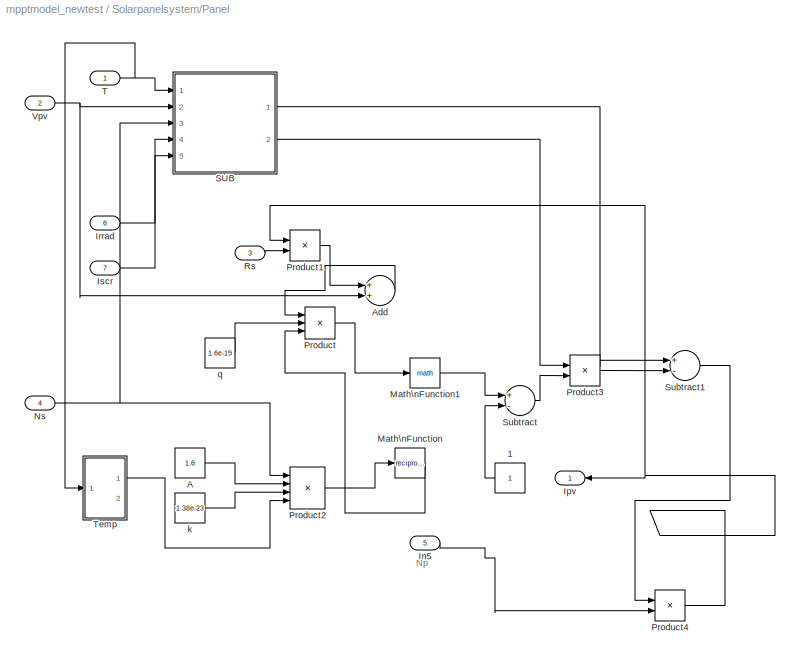
BLOCK [SubSystem] Solarpanelsystem/Panel
  Ports = [7, 1]
  RequestExecContextInheritance = off
  SID = 252
BLOCK [Constant] Solarpanelsystem/Panel/1
  SID = 260
BLOCK [Constant] Solarpanelsystem/Panel/A
  SID = 261
  Value = 1.6
BLOCK [Sum] Solarpanelsystem/Panel/Add
  InputSameDT = off
  OutDataTypeStr = Inherit: Inherit via internal rule
  Ports = [2, 1]
  SID = 262
  SaturateOnIntegerOverflow = off
BLOCK [Inport] Solarpanelsystem/Panel/In5
  IconDisplay = Port number
  Port = 5
  SID = 257
BLOCK [Outport] Solarpanelsystem/Panel/Ipv
  IconDisplay = Port number
  SID = 350
BLOCK [Inport] Solarpanelsystem/Panel/Irrad
  IconDisplay = Port number
  Port = 6
  SID = 258
BLOCK [Inport] Solarpanelsystem/Panel/Iscr
  IconDisplay = Port number
  Port = 7
  SID = 259
BLOCK [Math] Solarpanelsystem/Panel/Math\nFunction
  Operator = reciprocal
  Ports = [1, 1]
  SID = 263
BLOCK [Math] Solarpanelsystem/Panel/Math\nFunction1
  Ports = [1, 1]
  SID = 264
BLOCK [Inport] Solarpanelsystem/Panel/Ns
  IconDisplay = Port number
  Port = 4
  SID = 256
BLOCK [Product] Solarpanelsystem/Panel/Product
  InputSameDT = off
  Inputs = 3
  OutDataTypeStr = Inherit: Inherit via internal rule
  Ports = [3, 1]
  SID = 265
  SaturateOnIntegerOverflow = off
BLOCK [Product] Solarpanelsystem/Panel/Product1
  InputSameDT = off
  OutDataTypeStr = Inherit: Inherit via internal rule
  Ports = [2, 1]
  SID = 266
  SaturateOnIntegerOverflow = off
BLOCK [Product] Solarpanelsystem/Panel/Product2
  InputSameDT = off
  Inputs = 4
  OutDataTypeStr = Inherit: Inherit via internal rule
  Ports = [4, 1]
  SID = 267
  SaturateOnIntegerOverflow = off
BLOCK [Product] Solarpanelsystem/Panel/Product3
  InputSameDT = off
  OutDataTypeStr = Inherit: Inherit via internal rule
  Ports = [2, 1]
  SID = 268
  SaturateOnIntegerOverflow = off
BLOCK [Product] Solarpanelsystem/Panel/Product4
  InputSameDT = off
  OutDataTypeStr = Inherit: Inherit via internal rule
  Ports = [2, 1]
  SID = 269
  SaturateOnIntegerOverflow = off
BLOCK [Inport] Solarpanelsystem/Panel/Rs
  IconDisplay = Port number
  Port = 3
  SID = 255
BLOCK [SubSystem] Solarpanelsystem/Panel/SUB
  Ports = [5, 2]
  RequestExecContextInheritance = off
  SID = 270
BLOCK [Outport] Solarpanelsystem/Panel/SUB/I0
  IconDisplay = Port number
  Port = 2
  SID = 336
BLOCK [SubSystem] Solarpanelsystem/Panel/SUB/IPH
  Ports = [4, 1]
  RequestExecContextInheritance = off
  SID = 276
BLOCK [Sum] Solarpanelsystem/Panel/SUB/IPH/Add
  InputSameDT = off
  OutDataTypeStr = Inherit: Inherit via internal rule
  Ports = [2, 1]
  SID = 281
  SaturateOnIntegerOverflow = off
BLOCK [Outport] Solarpanelsystem/Panel/SUB/IPH/Iph
  IconDisplay = Port number
  SID = 288
BLOCK [Inport] Solarpanelsystem/Panel/SUB/IPH/Iscref
  IconDisplay = Port number
  Port = 3
  SID = 279
BLOCK [Constant] Solarpanelsystem/Panel/SUB/IPH/Ki
  SID = 282
  Value = 0.0017
BLOCK [Constant] Solarpanelsystem/Panel/SUB/IPH/Ki1
  SID = 283
  Value = 1e-3
BLOCK [Product] Solarpanelsystem/Panel/SUB/IPH/Product
  InputSameDT = off
  OutDataTypeStr = Inherit: Inherit via internal rule
  Ports = [2, 1]
  SID = 284
  SaturateOnIntegerOverflow = off
BLOCK [Product] Solarpanelsystem/Panel/SUB/IPH/Product1
  InputSameDT = off
  OutDataTypeStr = Inherit: Inherit via internal rule
  Ports = [2, 1]
  SID = 285
  SaturateOnIntegerOverflow = off
BLOCK [Product] Solarpanelsystem/Panel/SUB/IPH/Product2
  InputSameDT = off
  OutDataTypeStr = Inherit: Inherit via internal rule
  Ports = [2, 1]
  SID = 286
  SaturateOnIntegerOverflow = off
BLOCK [Sum] Solarpanelsystem/Panel/SUB/IPH/Sum
  IconShape = round
  InputSameDT = off
  Inputs = |+-
  OutDataTypeStr = Inherit: Inherit via internal rule
  Ports = [2, 1]
  SID = 287
  SaturateOnIntegerOverflow = off
BLOCK [Inport] Solarpanelsystem/Panel/SUB/IPH/Tk
  IconDisplay = Port number
  SID = 277
BLOCK [Inport] Solarpanelsystem/Panel/SUB/IPH/Tref
  IconDisplay = Port number
  Port = 2
  SID = 278
BLOCK [Inport] Solarpanelsystem/Panel/SUB/IPH/irradiation
  IconDisplay = Port number
  Port = 4
  SID = 280
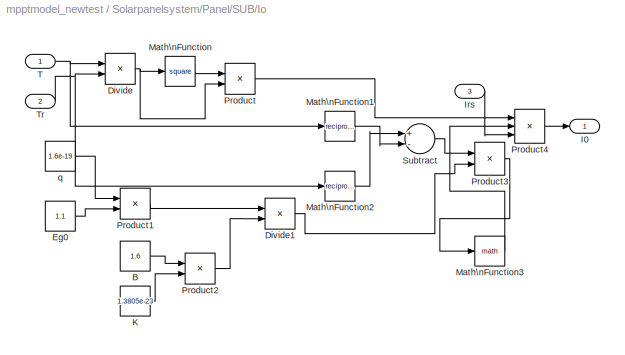
BLOCK [SubSystem] Solarpanelsystem/Panel/SUB/Io
  Ports = [3, 1]
  RequestExecContextInheritance = off
  SID = 289
BLOCK [Constant] Solarpanelsystem/Panel/SUB/Io/B
  SID = 293
  Value = 1.6
BLOCK [Product] Solarpanelsystem/Panel/SUB/Io/Divide
  InputSameDT = off
  Inputs = */
  OutDataTypeStr = Inherit: Inherit via internal rule
  Ports = [2, 1]
  RndMeth = Floor
  SID = 294
  SaturateOnIntegerOverflow = off
BLOCK [Product] Solarpanelsystem/Panel/SUB/Io/Divide1
  InputSameDT = off
  Inputs = */
  OutDataTypeStr = Inherit: Inherit via internal rule
  Ports = [2, 1]
  RndMeth = Floor
  SID = 295
  SaturateOnIntegerOverflow = off
BLOCK [Constant] Solarpanelsystem/Panel/SUB/Io/Eg0
  SID = 296
  Value = 1.1
BLOCK [Outport] Solarpanelsystem/Panel/SUB/Io/I0
  IconDisplay = Port number
  SID = 309
BLOCK [Inport] Solarpanelsystem/Panel/SUB/Io/Irs
  IconDisplay = Port number
  Port = 3
  SID = 292
BLOCK [Constant] Solarpanelsystem/Panel/SUB/Io/K
  SID = 297
  Value = 1.3805e-23
BLOCK [Math] Solarpanelsystem/Panel/SUB/Io/Math\nFunction
  Operator = square
  Ports = [1, 1]
  SID = 298
BLOCK [Math] Solarpanelsystem/Panel/SUB/Io/Math\nFunction1
  Operator = reciprocal
  Ports = [1, 1]
  SID = 299
BLOCK [Math] Solarpanelsystem/Panel/SUB/Io/Math\nFunction2
  Operator = reciprocal
  Ports = [1, 1]
  SID = 300
BLOCK [Math] Solarpanelsystem/Panel/SUB/Io/Math\nFunction3
  Ports = [1, 1]
  SID = 301
BLOCK [Product] Solarpanelsystem/Panel/SUB/Io/Product
  InputSameDT = off
  OutDataTypeStr = Inherit: Inherit via internal rule
  Ports = [2, 1]
  SID = 302
  SaturateOnIntegerOverflow = off
BLOCK [Product] Solarpanelsystem/Panel/SUB/Io/Product1
  InputSameDT = off
  OutDataTypeStr = Inherit: Inherit via internal rule
  Ports = [2, 1]
  SID = 303
  SaturateOnIntegerOverflow = off
BLOCK [Product] Solarpanelsystem/Panel/SUB/Io/Product2
  InputSameDT = off
  OutDataTypeStr = Inherit: Inherit via internal rule
  Ports = [2, 1]
  SID = 304
  SaturateOnIntegerOverflow = off
BLOCK [Product] Solarpanelsystem/Panel/SUB/Io/Product3
  InputSameDT = off
  OutDataTypeStr = Inherit: Inherit via internal rule
  Ports = [2, 1]
  SID = 305
  SaturateOnIntegerOverflow = off
BLOCK [Product] Solarpanelsystem/Panel/SUB/Io/Product4
  InputSameDT = off
  Inputs = 3
  OutDataTypeStr = Inherit: Inherit via internal rule
  Ports = [3, 1]
  SID = 306
  SaturateOnIntegerOverflow = off
BLOCK [Sum] Solarpanelsystem/Panel/SUB/Io/Subtract
  InputSameDT = off
  Inputs = +-
  OutDataTypeStr = Inherit: Inherit via internal rule
  Ports = [2, 1]
  SID = 307
  SaturateOnIntegerOverflow = off
BLOCK [Inport] Solarpanelsystem/Panel/SUB/Io/T
  IconDisplay = Port number
  SID = 290
BLOCK [Inport] Solarpanelsystem/Panel/SUB/Io/Tr
  IconDisplay = Port number
  Port = 2
  SID = 291
BLOCK [Constant] Solarpanelsystem/Panel/SUB/Io/q
  SID = 308
  Value = 1.6e-19
BLOCK [Outport] Solarpanelsystem/Panel/SUB/Iph
  IconDisplay = Port number
  SID = 335
BLOCK [Inport] Solarpanelsystem/Panel/SUB/Irrad
  IconDisplay = Port number
  Port = 4
  SID = 274
BLOCK [SubSystem] Solarpanelsystem/Panel/SUB/Irs
  Ports = [3, 1]
  RequestExecContextInheritance = off
  SID = 310
BLOCK [Constant] Solarpanelsystem/Panel/SUB/Irs/A
  SID = 314
  Value = 1.6
BLOCK [Constant] Solarpanelsystem/Panel/SUB/Irs/Constant
  SID = 315
BLOCK [Product] Solarpanelsystem/Panel/SUB/Irs/Divide
  InputSameDT = off
  Inputs = */
  OutDataTypeStr = Inherit: Inherit via internal rule
  Ports = [2, 1]
  RndMeth = Floor
  SID = 316
  SaturateOnIntegerOverflow = off
BLOCK [Product] Solarpanelsystem/Panel/SUB/Irs/Divide1
  InputSameDT = off
  Inputs = */
  OutDataTypeStr = Inherit: Inherit via internal rule
  Ports = [2, 1]
  RndMeth = Floor
  SID = 317
  SaturateOnIntegerOverflow = off
BLOCK [Outport] Solarpanelsystem/Panel/SUB/Irs/Irs
  IconDisplay = Port number
  SID = 326
BLOCK [Inport] Solarpanelsystem/Panel/SUB/Irs/Iscr
  IconDisplay = Port number
  SID = 311
BLOCK [Constant] Solarpanelsystem/Panel/SUB/Irs/K
  SID = 318
  Value = 1.3805e-23
BLOCK [Math] Solarpanelsystem/Panel/SUB/Irs/Math\nFunction
  Ports = [1, 1]
  SID = 319
BLOCK [Inport] Solarpanelsystem/Panel/SUB/Irs/Ns
  IconDisplay = Port number
  Port = 3
  SID = 313
BLOCK [Product] Solarpanelsystem/Panel/SUB/Irs/Product
  InputSameDT = off
  OutDataTypeStr = Inherit: Inherit via internal rule
  Ports = [2, 1]
  SID = 320
  SaturateOnIntegerOverflow = off
BLOCK [Product] Solarpanelsystem/Panel/SUB/Irs/Product1
  InputSameDT = off
  Inputs = 4
  OutDataTypeStr = Inherit: Inherit via internal rule
  Ports = [4, 1]
  SID = 321
  SaturateOnIntegerOverflow = off
BLOCK [Product] Solarpanelsystem/Panel/SUB/Irs/Product2
  InputSameDT = off
  OutDataTypeStr = Inherit: Inherit via internal rule
  Ports = [2, 1]
  SID = 322
  SaturateOnIntegerOverflow = off
BLOCK [Sum] Solarpanelsystem/Panel/SUB/Irs/Subtract
  InputSameDT = off
  Inputs = +-
  OutDataTypeStr = Inherit: Inherit via internal rule
  Ports = [2, 1]
  SID = 323
  SaturateOnIntegerOverflow = off
BLOCK [Inport] Solarpanelsystem/Panel/SUB/Irs/T
  IconDisplay = Port number
  Port = 2
  SID = 312
BLOCK [Constant] Solarpanelsystem/Panel/SUB/Irs/q
  SID = 324
  Value = 1.6e-19
BLOCK [Constant] Solarpanelsystem/Panel/SUB/Irs/voc
  SID = 325
  Value = 0.6
BLOCK [Inport] Solarpanelsystem/Panel/SUB/Iscr
  IconDisplay = Port number
  Port = 5
  SID = 275
BLOCK [Inport] Solarpanelsystem/Panel/SUB/Ns
  IconDisplay = Port number
  Port = 3
  SID = 273
BLOCK [Inport] Solarpanelsystem/Panel/SUB/T
  IconDisplay = Port number
  SID = 271
BLOCK [SubSystem] Solarpanelsystem/Panel/SUB/Temp
  Ports = [1, 2]
  RequestExecContextInheritance = off
  SID = 327
BLOCK [Constant] Solarpanelsystem/Panel/SUB/Temp/2
  SID = 329
  Value = 25
BLOCK [Constant] Solarpanelsystem/Panel/SUB/Temp/273
  SID = 330
  Value = 273
BLOCK [Sum] Solarpanelsystem/Panel/SUB/Temp/Sum
  IconShape = round
  InputSameDT = off
  Inputs = |++
  OutDataTypeStr = Inherit: Inherit via internal rule
  Ports = [2, 1]
  SID = 331
  SaturateOnIntegerOverflow = off
BLOCK [Sum] Solarpanelsystem/Panel/SUB/Temp/Sum1
  IconShape = round
  InputSameDT = off
  Inputs = |++
  OutDataTypeStr = Inherit: Inherit via internal rule
  Ports = [2, 1]
  SID = 332
  SaturateOnIntegerOverflow = off
BLOCK [Inport] Solarpanelsystem/Panel/SUB/Temp/T
  IconDisplay = Port number
  SID = 328
BLOCK [Outport] Solarpanelsystem/Panel/SUB/Temp/Tk
  IconDisplay = Port number
  SID = 333
BLOCK [Outport] Solarpanelsystem/Panel/SUB/Temp/Tref
  IconDisplay = Port number
  Port = 2
  SID = 334
BLOCK [Inport] Solarpanelsystem/Panel/SUB/Vpv
  IconDisplay = Port number
  Port = 2
  SID = 272
BLOCK [Sum] Solarpanelsystem/Panel/Subtract
  InputSameDT = off
  Inputs = +-
  OutDataTypeStr = Inherit: Inherit via internal rule
  Ports = [2, 1]
  SID = 338
  SaturateOnIntegerOverflow = off
BLOCK [Sum] Solarpanelsystem/Panel/Subtract1
  InputSameDT = off
  Inputs = +-
  OutDataTypeStr = Inherit: Inherit via internal rule
  Ports = [2, 1]
  SID = 339
  SaturateOnIntegerOverflow = off
BLOCK [Inport] Solarpanelsystem/Panel/T
  IconDisplay = Port number
  SID = 253
BLOCK [SubSystem] Solarpanelsystem/Panel/Temp
  Ports = [1, 2]
  RequestExecContextInheritance = off
  SID = 340
BLOCK [Constant] Solarpanelsystem/Panel/Temp/2
  SID = 342
  Value = 25
BLOCK [Constant] Solarpanelsystem/Panel/Temp/273
  SID = 343
  Value = 273
BLOCK [Sum] Solarpanelsystem/Panel/Temp/Sum
  IconShape = round
  InputSameDT = off
  Inputs = |++
  OutDataTypeStr = Inherit: Inherit via internal rule
  Ports = [2, 1]
  SID = 344
  SaturateOnIntegerOverflow = off
BLOCK [Sum] Solarpanelsystem/Panel/Temp/Sum1
  IconShape = round
  InputSameDT = off
  Inputs = |++
  OutDataTypeStr = Inherit: Inherit via internal rule
  Ports = [2, 1]
  SID = 345
  SaturateOnIntegerOverflow = off
BLOCK [Inport] Solarpanelsystem/Panel/Temp/T
  IconDisplay = Port number
  SID = 341
BLOCK [Outport] Solarpanelsystem/Panel/Temp/Tk
  IconDisplay = Port number
  SID = 346
BLOCK [Outport] Solarpanelsystem/Panel/Temp/Tref
  IconDisplay = Port number
  Port = 2
  SID = 347
BLOCK [Inport] Solarpanelsystem/Panel/Vpv
  IconDisplay = Port number
  Port = 2
  SID = 254
BLOCK [Constant] Solarpanelsystem/Panel/k
  SID = 348
  Value = 1.38e-23
BLOCK [Constant] Solarpanelsystem/Panel/q
  SID = 349
  Value = 1.6e-19
BLOCK [Constant] Solarpanelsystem/Rs
  SID = 352
  Value = 0.1
BLOCK [Constant] Solarpanelsystem/T
  SID = 353
  Value = 25
BLOCK [Inport] Solarpanelsystem/Vpv
  IconDisplay = Port number
  SID = 247
BLOCK [Constant] Solarpanelsystem/irradiance
  SID = 433
  Value = 1000
BLOCK [SubSystem] Subsystem
  Ports = [1, 2]
  RequestExecContextInheritance = off
  SID = 236
BLOCK [Relay] Subsystem/Relay
  SID = 232
BLOCK [Reference] Subsystem/Repeating\nSequence  REF=simulink/Sources/Repeating\nSequence
  Ports = [0, 1]
  SID = 233
  SourceBlock = simulink/Sources/Repeating\nSequence
  SourceProductBaseCode = SL
  SourceProductName = Simulink
  SourceType = Repeating table
  rep_seq_t = [0 0.02e-3 0.02e-3]
  rep_seq_y = [0 1 0]
BLOCK [SubSystem] Subsystem/Subsystem
  Ports = [1, 2]
  RequestExecContextInheritance = off
  SID = 357
BLOCK [Relay] Subsystem/Subsystem/Relay
  SID = 359
BLOCK [Reference] Subsystem/Subsystem/Repeating\nSequence  REF=simulink/Sources/Repeating\nSequence
  Ports = [0, 1]
  SID = 360
  SourceBlock = simulink/Sources/Repeating\nSequence
  SourceProductBaseCode = SL
  SourceProductName = Simulink
  SourceType = Repeating table
  rep_seq_t = [0:0.001e-3:0.02e-3]
  rep_seq_y = [0:0.1:2]
BLOCK [Sum] Subsystem/Subsystem/Subtract
  InputSameDT = off
  Inputs = +-
  OutDataTypeStr = Inherit: Inherit via internal rule
  Ports = [2, 1]
  SID = 361
  SaturateOnIntegerOverflow = off
BLOCK [Outport] Subsystem/Subsystem/pulse
  IconDisplay = Port number
  SID = 362
BLOCK [Outport] Subsystem/Subsystem/ramp
  IconDisplay = Port number
  Port = 2
  SID = 363
BLOCK [Inport] Subsystem/Subsystem/ref
  IconDisplay = Port number
  SID = 358
BLOCK [Sum] Subsystem/Subtract
  InputSameDT = off
  Inputs = +-
  OutDataTypeStr = Inherit: Inherit via internal rule
  Ports = [2, 1]
  SID = 235
  SaturateOnIntegerOverflow = off
BLOCK [Outport] Subsystem/pulse
  IconDisplay = Port number
  SID = 238
BLOCK [Outport] Subsystem/ramp
  IconDisplay = Port number
  Port = 2
  SID = 239
BLOCK [Inport] Subsystem/ref
  IconDisplay = Port number
  SID = 237
BLOCK [ToWorkspace] To Workspace1
  MaxDataPoints = inf
  Ports = [1]
  SID = 443
  SampleTime = -1
  SaveFormat = Timeseries
  VariableName = Inputvoltage
BLOCK [Scope] Vin
  Floating = off
  NumInputPorts = 2
  Ports = [2]
  SID = 205
  ScopeSpecificationString = C++SS(StrPVP('Location','[5, 48, 1359, 727]'),StrPVP('Open','off'),MxPVP('AxesTitles',54,'struct(''axes1'',''%<SignalLabel>'',''axes2'',''%<SignalLabel>'')'),MxPVP('ScopeGraphics',57,'struct(''FigureColor'',''[0.5 0.5 0.5]'',''AxesColor'',''[0 0 0]'',''AxesTickColor'',''[1 1 1]'',''LineColors'',''[1 1 0;1 0 1;0 1 1;1 0 0;0 1 0;0 0 1]'',''LineStyles'',''-|-|-|-|-|-'',''LineWidths'',''[0.5 0.5 0.5 0...<+311ch>
BLOCK [Scope] Vl
  Floating = off
  NumInputPorts = 1
  Ports = [1]
  SID = 217
  ScopeSpecificationString = C++SS(StrPVP('Location','[5, 48, 1359, 727]'),StrPVP('Open','off'),StrPVP('ZoomMode','xonly'),MxPVP('AxesTitles',54,'struct(''axes1'',''%<SignalLabel>'')'),MxPVP('ScopeGraphics',57,'struct(''FigureColor'',''[0.5 0.5 0.5]'',''AxesColor'',''[0 0 0]'',''AxesTickColor'',''[1 1 1]'',''LineColors'',''[1 1 0;1 0 1;0 1 1;1 0 0;0 1 0;0 0 1]'',''LineStyles'',''-|-|-|-|-|-'',''LineWidths'',''[0.5 0.5 0.5 0.5...<+296ch>
BLOCK [Reference] Voltmeter  REF=powerlib/Measurements/Voltage Measurement
  OutputType = Complex
  PSBequivalent = 0
  PhasorSimulation = off
  Ports = [0, 1, 0, 0, 0, 2]
  SID = 204
  SourceBlock = powerlib/Measurements/Voltage Measurement
  SourceProductBaseCode = PS
  SourceProductName = Simscape Electrical
  SourceType = Voltage Measurement
BLOCK [Reference] Voltmeter1  REF=powerlib/Measurements/Voltage Measurement
  OutputType = Complex
  PSBequivalent = 0
  PhasorSimulation = off
  Ports = [0, 1, 0, 0, 0, 2]
  SID = 214
  SourceBlock = powerlib/Measurements/Voltage Measurement
  SourceProductBaseCode = PS
  SourceProductName = Simscape Electrical
  SourceType = Voltage Measurement
BLOCK [Reference] Voltmeter2  REF=powerlib/Measurements/Voltage Measurement
  OutputType = Complex
  PSBequivalent = 0
  PhasorSimulation = off
  Ports = [0, 1, 0, 0, 0, 2]
  SID = 216
  SourceBlock = powerlib/Measurements/Voltage Measurement
  SourceProductBaseCode = PS
  SourceProductName = Simscape Electrical
  SourceType = Voltage Measurement
BLOCK [Reference] powergui  REF=powerlib/powergui
  DisableRonSwitches = off
  DisableSnubberDevices = off
  DisableVfSwitches = off
  DisplayEquations = off
  DisplayStyle = 1
  EnableUseOfTLC = off
  ErrMax = 1e-4
  FreqAxis = off
  FunctionMessages = off
  HookPort = off
  Interpol = off
  Iterations = 50
  MaxFrequency = 1000
  Pbase = 100e6
  Ports = []
  Priority = 1
  ResistiveCurrentMeasurement = off
  RestoreLinks = warning
  SID = 171
  SPID = on
  SampleTime = 50e-6
  ShowGrid = off
  SolverType = Tustin
  SourceBlock = powerlib/powergui
  SourceProductBaseCode = PS
  SourceProductName = Simscape Electrical
  SourceType = PSB option menu block
  StartTime = 0.0
  SwTol = 0
  UnitsV = kV
  UnitsW = MW
  UserData = DataTag0
  UserDataPersistent = on
  Xlog = on
  Ylog = off
  ZoomFFT = off
  cycles = 1
  display = off
  echomessages = off
  frequency = 60
  frequencyindice = 0
  frequencyindicesteady = 1
  methode = off
  save = off
  variable = ZData
  x0status = blocks
BLOCK [Reference] r  REF=powerlib/Elements/Series RLC Branch
  BranchType = R
  Capacitance = 1e-6
  Inductance = 1e-3
  InitialCurrent = 0
  InitialVoltage = 0
  LConnTagsString = __new0
  Measurements = None
  Ports = [0, 0, 0, 0, 0, 1, 1]
  RConnTagsString = __new0
  Resistance = 6
  SID = 441
  SetiL0 = off
  Setx0 = off
  SourceBlock = powerlib/Elements/Series RLC Branch
  SourceProductBaseCode = PS
  SourceProductName = Simscape Electrical
  SourceType = Series RLC Branch
BLOCK [Reference] switch  REF=powerlib/Power\nElectronics/Ideal Switch
  Cs = inf
  IC = 0
  Lon = 0
  Measurements = on
  Ports = [1, 1, 0, 0, 0, 1, 1]
  Ron = 0.001
  Rs = 1e5
  SID = 209
  SourceBlock = powerlib/Power\nElectronics/Ideal Switch
  SourceProductBaseCode = PS
  SourceProductName = Simscape Electrical
  SourceType = Ideal Switch
ANNOTATION (root): Simulation by Ranjith.S, RIT KOTTAYAM\n contact : <email>
ANNOTATION (root): MPPT SIMULINK SETUP using buck converter
ANNOTATION MPPT: P&O MODEL
ANNOTATION Solarpanelsystem: You can edit these parameters for your desired panel model\n\nNs = no of series cell\nNp = no of parallel combination\n\n*rest of the parameters are according to general panel model equation
ANNOTATION Solarpanelsystem/Panel: Np
ANNOTATION Solarpanelsystem/Panel/SUB: Iph
LINE Ammeter1:1 -> Simulation outs:3
NET Ammeter:1 -> MPPT:2, Simulation outs:2, Vin:1
NET MPPT/Add:1 -> MPPT/Db:1, MPPT/Saturation:1
LINE MPPT/D State:1 -> MPPT/Add:1
LINE MPPT/Db:1 -> MPPT/Add:2
LINE MPPT/DeltaD:1 -> MPPT/D State:1
LINE MPPT/DeltaP*DeltaV:1 -> MPPT/Switch1:2
NET MPPT/I:1 -> MPPT/Ib:1, MPPT/Pn:2
LINE MPPT/Ib:1 -> MPPT/Pb:2
LINE MPPT/If DeltaP*DeltaV<0:1 -> MPPT/Switch1:3
LINE MPPT/If DeltaP*DeltaV>0:1 -> MPPT/Switch1:1
LINE MPPT/Pb:1 -> MPPT/Pn-Pb:2
LINE MPPT/Pn-Pb:1 -> MPPT/DeltaP*DeltaV:1
LINE MPPT/Pn:1 -> MPPT/Pn-Pb:1
LINE MPPT/Saturation:1 -> MPPT/D:1
LINE MPPT/Switch1:1 -> MPPT/D State:2
NET MPPT/V:1 -> MPPT/Pn:1, MPPT/Vb:1, MPPT/Vn-Vb:1
NET MPPT/Vb:1 -> MPPT/Pb:1, MPPT/Vn-Vb:2
LINE MPPT/Vn-Vb:1 -> MPPT/DeltaP*DeltaV:2
LINE MPPT:1 -> Subsystem:1
LINE Simulation outs/Clock:1 -> Simulation outs/Power input:1
LINE Simulation outs/Iin:1 -> Simulation outs/Product:2
LINE Simulation outs/Iload1:1 -> Simulation outs/Iload:1
NET Simulation outs/Product:1 -> Simulation outs/Input power display:1, Simulation outs/Power input:2, Simulation outs/Power:1, Simulation outs/To Workspace:1
LINE Simulation outs/Vin:1 -> Simulation outs/Product:1
LINE Solarpanelsystem/Iscr:1 -> Solarpanelsystem/Panel:7
LINE Solarpanelsystem/Np:1 -> Solarpanelsystem/Panel:5
LINE Solarpanelsystem/Ns:1 -> Solarpanelsystem/Panel:4
LINE Solarpanelsystem/Panel/1:1 -> Solarpanelsystem/Panel/Subtract:2
LINE Solarpanelsystem/Panel/A:1 -> Solarpanelsystem/Panel/Product2:2
LINE Solarpanelsystem/Panel/Add:1 -> Solarpanelsystem/Panel/Product:1
LINE Solarpanelsystem/Panel/In5:1 -> Solarpanelsystem/Panel/Product4:2
LINE Solarpanelsystem/Panel/Irrad:1 -> Solarpanelsystem/Panel/SUB:4
LINE Solarpanelsystem/Panel/Iscr:1 -> Solarpanelsystem/Panel/SUB:5
LINE Solarpanelsystem/Panel/Math\nFunction1:1 -> Solarpanelsystem/Panel/Subtract:1
LINE Solarpanelsystem/Panel/Math\nFunction:1 -> Solarpanelsystem/Panel/Product:3
NET Solarpanelsystem/Panel/Ns:1 -> Solarpanelsystem/Panel/Product2:1, Solarpanelsystem/Panel/SUB:3
LINE Solarpanelsystem/Panel/Product1:1 -> Solarpanelsystem/Panel/Add:1
LINE Solarpanelsystem/Panel/Product2:1 -> Solarpanelsystem/Panel/Math\nFunction:1
LINE Solarpanelsystem/Panel/Product3:1 -> Solarpanelsystem/Panel/Subtract1:2
NET Solarpanelsystem/Panel/Product4:1 -> Solarpanelsystem/Panel/Ipv:1, Solarpanelsystem/Panel/Product1:1
LINE Solarpanelsystem/Panel/Product:1 -> Solarpanelsystem/Panel/Math\nFunction1:1
LINE Solarpanelsystem/Panel/Rs:1 -> Solarpanelsystem/Panel/Product1:2
LINE Solarpanelsystem/Panel/SUB/IPH/Add:1 -> Solarpanelsystem/Panel/SUB/IPH/Product2:1
LINE Solarpanelsystem/Panel/SUB/IPH/Iscref:1 -> Solarpanelsystem/Panel/SUB/IPH/Add:2
LINE Solarpanelsystem/Panel/SUB/IPH/Ki1:1 -> Solarpanelsystem/Panel/SUB/IPH/Product1:2
LINE Solarpanelsystem/Panel/SUB/IPH/Ki:1 -> Solarpanelsystem/Panel/SUB/IPH/Product:2
LINE Solarpanelsystem/Panel/SUB/IPH/Product1:1 -> Solarpanelsystem/Panel/SUB/IPH/Product2:2
LINE Solarpanelsystem/Panel/SUB/IPH/Product2:1 -> Solarpanelsystem/Panel/SUB/IPH/Iph:1
LINE Solarpanelsystem/Panel/SUB/IPH/Product:1 -> Solarpanelsystem/Panel/SUB/IPH/Add:1
LINE Solarpanelsystem/Panel/SUB/IPH/Sum:1 -> Solarpanelsystem/Panel/SUB/IPH/Product:1
LINE Solarpanelsystem/Panel/SUB/IPH/Tk:1 -> Solarpanelsystem/Panel/SUB/IPH/Sum:1
LINE Solarpanelsystem/Panel/SUB/IPH/Tref:1 -> Solarpanelsystem/Panel/SUB/IPH/Sum:2
LINE Solarpanelsystem/Panel/SUB/IPH/irradiation:1 -> Solarpanelsystem/Panel/SUB/IPH/Product1:1
LINE Solarpanelsystem/Panel/SUB/IPH:1 -> Solarpanelsystem/Panel/SUB/Iph:1
LINE Solarpanelsystem/Panel/SUB/Io/B:1 -> Solarpanelsystem/Panel/SUB/Io/Product2:1
LINE Solarpanelsystem/Panel/SUB/Io/Divide1:1 -> Solarpanelsystem/Panel/SUB/Io/Product3:2
NET Solarpanelsystem/Panel/SUB/Io/Divide:1 -> Solarpanelsystem/Panel/SUB/Io/Math\nFunction:1, Solarpanelsystem/Panel/SUB/Io/Product:2
LINE Solarpanelsystem/Panel/SUB/Io/Eg0:1 -> Solarpanelsystem/Panel/SUB/Io/Product1:2
LINE Solarpanelsystem/Panel/SUB/Io/Irs:1 -> Solarpanelsystem/Panel/SUB/Io/Product4:3
LINE Solarpanelsystem/Panel/SUB/Io/K:1 -> Solarpanelsystem/Panel/SUB/Io/Product2:2
LINE Solarpanelsystem/Panel/SUB/Io/Math\nFunction1:1 -> Solarpanelsystem/Panel/SUB/Io/Subtract:2
LINE Solarpanelsystem/Panel/SUB/Io/Math\nFunction2:1 -> Solarpanelsystem/Panel/SUB/Io/Subtract:1
LINE Solarpanelsystem/Panel/SUB/Io/Math\nFunction3:1 -> Solarpanelsystem/Panel/SUB/Io/Product4:2
LINE Solarpanelsystem/Panel/SUB/Io/Math\nFunction:1 -> Solarpanelsystem/Panel/SUB/Io/Product:1
LINE Solarpanelsystem/Panel/SUB/Io/Product1:1 -> Solarpanelsystem/Panel/SUB/Io/Divide1:1
LINE Solarpanelsystem/Panel/SUB/Io/Product2:1 -> Solarpanelsystem/Panel/SUB/Io/Divide1:2
LINE Solarpanelsystem/Panel/SUB/Io/Product3:1 -> Solarpanelsystem/Panel/SUB/Io/Math\nFunction3:1
LINE Solarpanelsystem/Panel/SUB/Io/Product4:1 -> Solarpanelsystem/Panel/SUB/Io/I0:1
LINE Solarpanelsystem/Panel/SUB/Io/Product:1 -> Solarpanelsystem/Panel/SUB/Io/Product4:1
LINE Solarpanelsystem/Panel/SUB/Io/Subtract:1 -> Solarpanelsystem/Panel/SUB/Io/Product3:1
NET Solarpanelsystem/Panel/SUB/Io/T:1 -> Solarpanelsystem/Panel/SUB/Io/Divide:1, Solarpanelsystem/Panel/SUB/Io/Math\nFunction1:1
NET Solarpanelsystem/Panel/SUB/Io/Tr:1 -> Solarpanelsystem/Panel/SUB/Io/Divide:2, Solarpanelsystem/Panel/SUB/Io/Math\nFunction2:1
LINE Solarpanelsystem/Panel/SUB/Io/q:1 -> Solarpanelsystem/Panel/SUB/Io/Product1:1
LINE Solarpanelsystem/Panel/SUB/Io:1 -> Solarpanelsystem/Panel/SUB/I0:1
LINE Solarpanelsystem/Panel/SUB/Irrad:1 -> Solarpanelsystem/Panel/SUB/IPH:4
LINE Solarpanelsystem/Panel/SUB/Irs/A:1 -> Solarpanelsystem/Panel/SUB/Irs/Product1:2
LINE Solarpanelsystem/Panel/SUB/Irs/Constant:1 -> Solarpanelsystem/Panel/SUB/Irs/Subtract:2
LINE Solarpanelsystem/Panel/SUB/Irs/Divide1:1 -> Solarpanelsystem/Panel/SUB/Irs/Irs:1
LINE Solarpanelsystem/Panel/SUB/Irs/Divide:1 -> Solarpanelsystem/Panel/SUB/Irs/Math\nFunction:1
LINE Solarpanelsystem/Panel/SUB/Irs/Iscr:1 -> Solarpanelsystem/Panel/SUB/Irs/Divide1:1
LINE Solarpanelsystem/Panel/SUB/Irs/K:1 -> Solarpanelsystem/Panel/SUB/Irs/Product1:1
LINE Solarpanelsystem/Panel/SUB/Irs/Math\nFunction:1 -> Solarpanelsystem/Panel/SUB/Irs/Subtract:1
NET Solarpanelsystem/Panel/SUB/Irs/Ns:1 -> Solarpanelsystem/Panel/SUB/Irs/Product1:4, Solarpanelsystem/Panel/SUB/Irs/Product2:1
LINE Solarpanelsystem/Panel/SUB/Irs/Product1:1 -> Solarpanelsystem/Panel/SUB/Irs/Divide:2
LINE Solarpanelsystem/Panel/SUB/Irs/Product2:1 -> Solarpanelsystem/Panel/SUB/Irs/Product:2
LINE Solarpanelsystem/Panel/SUB/Irs/Product:1 -> Solarpanelsystem/Panel/SUB/Irs/Divide:1
LINE Solarpanelsystem/Panel/SUB/Irs/Subtract:1 -> Solarpanelsystem/Panel/SUB/Irs/Divide1:2
LINE Solarpanelsystem/Panel/SUB/Irs/T:1 -> Solarpanelsystem/Panel/SUB/Irs/Product1:3
LINE Solarpanelsystem/Panel/SUB/Irs/q:1 -> Solarpanelsystem/Panel/SUB/Irs/Product:1
LINE Solarpanelsystem/Panel/SUB/Irs/voc:1 -> Solarpanelsystem/Panel/SUB/Irs/Product2:2
LINE Solarpanelsystem/Panel/SUB/Irs:1 -> Solarpanelsystem/Panel/SUB/Io:3
NET Solarpanelsystem/Panel/SUB/Iscr:1 -> Solarpanelsystem/Panel/SUB/IPH:3, Solarpanelsystem/Panel/SUB/Irs:1
LINE Solarpanelsystem/Panel/SUB/Ns:1 -> Solarpanelsystem/Panel/SUB/Irs:3
LINE Solarpanelsystem/Panel/SUB/T:1 -> Solarpanelsystem/Panel/SUB/Temp:1
NET Solarpanelsystem/Panel/SUB/Temp/273:1 -> Solarpanelsystem/Panel/SUB/Temp/Sum1:1, Solarpanelsystem/Panel/SUB/Temp/Sum:2
LINE Solarpanelsystem/Panel/SUB/Temp/2:1 -> Solarpanelsystem/Panel/SUB/Temp/Sum1:2
LINE Solarpanelsystem/Panel/SUB/Temp/Sum1:1 -> Solarpanelsystem/Panel/SUB/Temp/Tref:1
LINE Solarpanelsystem/Panel/SUB/Temp/Sum:1 -> Solarpanelsystem/Panel/SUB/Temp/Tk:1
LINE Solarpanelsystem/Panel/SUB/Temp/T:1 -> Solarpanelsystem/Panel/SUB/Temp/Sum:1
NET Solarpanelsystem/Panel/SUB/Temp:1 -> Solarpanelsystem/Panel/SUB/IPH:1, Solarpanelsystem/Panel/SUB/Io:1, Solarpanelsystem/Panel/SUB/Irs:2
NET Solarpanelsystem/Panel/SUB/Temp:2 -> Solarpanelsystem/Panel/SUB/IPH:2, Solarpanelsystem/Panel/SUB/Io:2
LINE Solarpanelsystem/Panel/SUB:1 -> Solarpanelsystem/Panel/Subtract1:1
LINE Solarpanelsystem/Panel/SUB:2 -> Solarpanelsystem/Panel/Product3:1
LINE Solarpanelsystem/Panel/Subtract1:1 -> Solarpanelsystem/Panel/Product4:1
LINE Solarpanelsystem/Panel/Subtract:1 -> Solarpanelsystem/Panel/Product3:2
NET Solarpanelsystem/Panel/T:1 -> Solarpanelsystem/Panel/SUB:1, Solarpanelsystem/Panel/Temp:1
NET Solarpanelsystem/Panel/Temp/273:1 -> Solarpanelsystem/Panel/Temp/Sum1:1, Solarpanelsystem/Panel/Temp/Sum:2
LINE Solarpanelsystem/Panel/Temp/2:1 -> Solarpanelsystem/Panel/Temp/Sum1:2
LINE Solarpanelsystem/Panel/Temp/Sum1:1 -> Solarpanelsystem/Panel/Temp/Tref:1
LINE Solarpanelsystem/Panel/Temp/Sum:1 -> Solarpanelsystem/Panel/Temp/Tk:1
LINE Solarpanelsystem/Panel/Temp/T:1 -> Solarpanelsystem/Panel/Temp/Sum:1
LINE Solarpanelsystem/Panel/Temp:1 -> Solarpanelsystem/Panel/Product2:4
NET Solarpanelsystem/Panel/Vpv:1 -> Solarpanelsystem/Panel/Add:2, Solarpanelsystem/Panel/SUB:2
LINE Solarpanelsystem/Panel/k:1 -> Solarpanelsystem/Panel/Product2:3
LINE Solarpanelsystem/Panel/q:1 -> Solarpanelsystem/Panel/Product:2
LINE Solarpanelsystem/Panel:1 -> Solarpanelsystem/Ipv:1
LINE Solarpanelsystem/Rs:1 -> Solarpanelsystem/Panel:3
LINE Solarpanelsystem/T:1 -> Solarpanelsystem/Panel:1
LINE Solarpanelsystem/Vpv:1 -> Solarpanelsystem/Panel:2
LINE Solarpanelsystem/irradiance:1 -> Solarpanelsystem/Panel:6
LINE Solarpanelsystem:1 -> Isource:1
LINE Subsystem/Relay:1 -> Subsystem/pulse:1
NET Subsystem/Repeating\nSequence:1 -> Subsystem/Subtract:2, Subsystem/ramp:1
LINE Subsystem/Subsystem/Relay:1 -> Subsystem/Subsystem/pulse:1
NET Subsystem/Subsystem/Repeating\nSequence:1 -> Subsystem/Subsystem/Subtract:2, Subsystem/Subsystem/ramp:1
LINE Subsystem/Subsystem/Subtract:1 -> Subsystem/Subsystem/Relay:1
LINE Subsystem/Subsystem/ref:1 -> Subsystem/Subsystem/Subtract:1
LINE Subsystem/Subtract:1 -> Subsystem/Relay:1
LINE Subsystem/ref:1 -> Subsystem/Subtract:1
NET Subsystem:1 -> Scope3:1, switch:1
LINE Subsystem:2 -> Scope3:2
LINE Voltmeter1:1 -> Scope4:1
LINE Voltmeter2:1 -> Vl:1
NET Voltmeter:1 -> Input voltage:1, MPPT:1, Simulation outs:1, Solarpanelsystem:1, To Workspace1:1, Vin:2
PNET net1: Ammeter1:LConn1 -- Voltmeter1:LConn2 -- r:RConn1
PNET net2: Ammeter1:RConn1 -- Cin:RConn1 -- Diode:LConn1 -- Isource:LConn1 -- Series RLC Branch:RConn1 -- Voltmeter:LConn2
PLINE Ammeter:LConn1 -- Isource:RConn1
PNET net3: Ammeter:RConn1 -- Cin:LConn1 -- Voltmeter:LConn1 -- switch:LConn1
PNET net4: Diode:RConn1 -- L:LConn1 -- Voltmeter2:LConn1 -- switch:RConn1
PNET net5: L:RConn1 -- Series RLC Branch:LConn1 -- Voltmeter1:LConn1 -- Voltmeter2:LConn2 -- r:LConn1
note: NET lines group one-source signal fan-out (src -> all destinations, sorted); 1:1 wires keep LINE; PNET lines group multi-terminal physical nets as a canonical sorted terminal list (undirected conserving connections); 2-terminal nets keep the pairwise PLINE form
